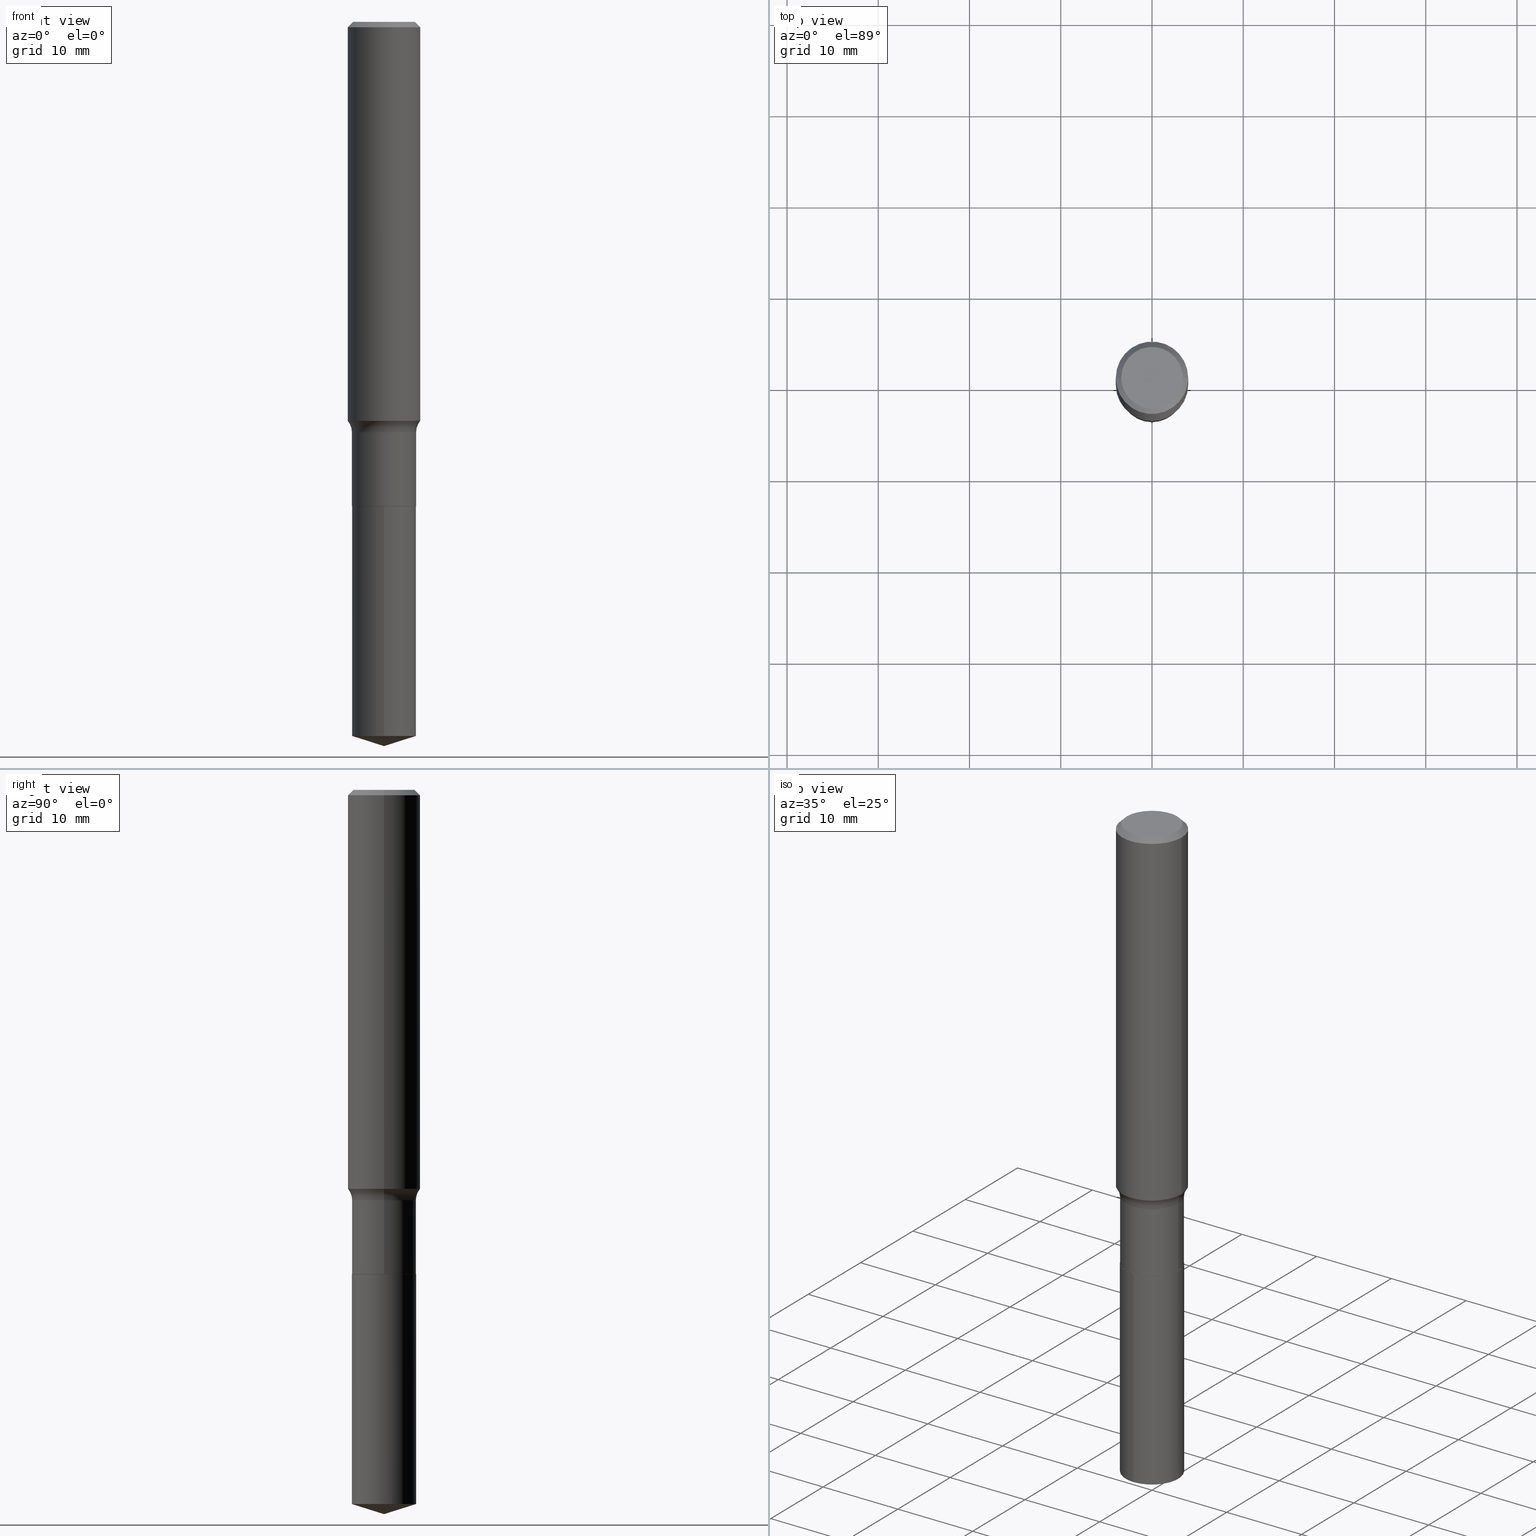
[diagram: canonical four-view strip — front | top / right | iso, engineering-drawing reading convention]
A machine part, canonical four-view strip (front | top / right | iso — engineering-drawing reading convention). The complete STEP part file that produces these views, byte-faithful:
ISO-10303-21;
HEADER;
FILE_DESCRIPTION (( 'STEP AP203' ),
    '1' );
FILE_NAME ('51608.STEP',
    '2024-04-19T13:08:50',
    ( '' ),
    ( '' ),
    'SwSTEP 2.0',
    'SolidWorks 2023',
    '' );
FILE_SCHEMA (( 'CONFIG_CONTROL_DESIGN' ));
ENDSEC;

DATA;
#1 = ORIENTED_EDGE ( 'NONE', *, *, #352, .F. ) ;
#2 = CARTESIAN_POINT ( 'NONE',  ( 0.1385000000000000120, -8.260844847702879898E-15, -2.089000000000000412 ) ) ;
#3 = ADVANCED_FACE ( 'NONE', ( #116 ), #122, .F. ) ;
#4 = CIRCLE ( 'NONE', #292, 0.1380000000000000115 ) ;
#5 = ORIENTED_EDGE ( 'NONE', *, *, #362, .T. ) ;
#6 = EDGE_LOOP ( 'NONE', ( #350, #73, #334 ) ) ;
#7 = ORIENTED_EDGE ( 'NONE', *, *, #124, .T. ) ;
#8 = AXIS2_PLACEMENT_3D ( 'NONE', #411, #66, #371 ) ;
#9 = AXIS2_PLACEMENT_3D ( 'NONE', #325, #335, #179 ) ;
#10 = EDGE_CURVE ( 'NONE', #304, #38, #50, .T. ) ;
#11 = CONICAL_SURFACE ( 'NONE', #131, 0.1562500000000000000, 0.7853981633974452814 ) ;
#12 = DIRECTION ( 'NONE',  ( 2.445468806185136597E-29, -3.491481338843145583E-15, -1.000000000000000000 ) ) ;
#13 = CARTESIAN_POINT ( 'NONE',  ( 0.1562500000000000000, -1.153784406030938435E-15, -0.02343750000000014225 ) ) ;
#14 = CARTESIAN_POINT ( 'NONE',  ( 7.641865694742115865E-29, -1.091120042946036964E-14, -3.125000000000000000 ) ) ;
#15 = FACE_OUTER_BOUND ( 'NONE', #485, .T. ) ;
#16 = DIRECTION ( 'NONE',  ( -6.982962677686266711E-15, -1.000000000000000000, 3.491481338843145583E-15 ) ) ;
#17 = AXIS2_PLACEMENT_3D ( 'NONE', #128, #473, #167 ) ;
#18 = APPROVAL ( #466, 'UNSPECIFIED' ) ;
#19 = CARTESIAN_POINT ( 'NONE',  ( 5.108584336120751499E-29, -7.293704516843332211E-15, -2.089000000000000412 ) ) ;
#20 = DIRECTION ( 'NONE',  ( -2.445468806185136877E-29, 3.491481338843145188E-15, 1.000000000000000000 ) ) ;
#21 = CARTESIAN_POINT ( 'NONE',  ( -0.1380000000000000115, -6.312252054989704175E-15, -2.089500000000000135 ) ) ;
#22 = CARTESIAN_POINT ( 'NONE',  ( 9.841016890277897242E-16, 0.1384999999999927123, -2.089500000000000579 ) ) ;
#23 = PERSON_AND_ORGANIZATION ( #177, #190 ) ;
#24 = CC_DESIGN_PERSON_AND_ORGANIZATION_ASSIGNMENT ( #210, #365, ( #114 ) ) ;
#25 = FACE_OUTER_BOUND ( 'NONE', #198, .T. ) ;
#26 = CIRCLE ( 'NONE', #163, 0.1328125000000000000 ) ;
#27 = CC_DESIGN_SECURITY_CLASSIFICATION ( #314, ( #114 ) ) ;
#28 = LINE ( 'NONE', #22, #386 ) ;
#29 = ORIENTED_EDGE ( 'NONE', *, *, #407, .T. ) ;
#30 = CARTESIAN_POINT ( 'NONE',  ( 4.330680708873258393E-29, -6.183064302957326676E-15, -1.770899999999999919 ) ) ;
#31 = FACE_OUTER_BOUND ( 'NONE', #185, .T. ) ;
#32 = VERTEX_POINT ( 'NONE', #345 ) ;
#33 = MANIFOLD_SOLID_BREP ( 'Body-Move/Copy2[1]', #320 ) ;
#34 = FACE_OUTER_BOUND ( 'NONE', #136, .T. ) ;
#35 =( NAMED_UNIT ( * ) PLANE_ANGLE_UNIT ( ) SI_UNIT ( $, .RADIAN. ) );
#36 = AXIS2_PLACEMENT_3D ( 'NONE', #423, #42, #189 ) ;
#37 = CYLINDRICAL_SURFACE ( 'NONE', #284, 0.1385000000000000120 ) ;
#38 = VERTEX_POINT ( 'NONE', #2 ) ;
#39 = APPROVAL_PERSON_ORGANIZATION ( #237, #166, #199 ) ;
#40 = CARTESIAN_POINT ( 'NONE',  ( 0.1380000000000000115, -8.259099107033459183E-15, -2.089500000000000135 ) ) ;
#41 = ORIENTED_EDGE ( 'NONE', *, *, #449, .F. ) ;
#42 = DIRECTION ( 'NONE',  ( -2.445468806185136597E-29, 3.491481338843145583E-15, 1.000000000000000000 ) ) ;
#43 = CLOSED_SHELL ( 'NONE', ( #323, #108, #275, #186, #480, #62, #139, #146, #400, #3, #415, #433 ) ) ;
#44 = ORIENTED_EDGE ( 'NONE', *, *, #391, .F. ) ;
#45 = AXIS2_PLACEMENT_3D ( 'NONE', #256, #61, #376 ) ;
#46 = LOCAL_TIME ( 9, 8, 50.00000000000000000, #403 ) ;
#47 = ORIENTED_EDGE ( 'NONE', *, *, #140, .T. ) ;
#48 = ORIENTED_EDGE ( 'NONE', *, *, #462, .F. ) ;
#49 = CARTESIAN_POINT ( 'NONE',  ( 5.109807070523843179E-29, -7.295450257512754504E-15, -2.089500000000000135 ) ) ;
#50 = CIRCLE ( 'NONE', #36, 0.1385000000000000120 ) ;
#51 = APPROVAL_PERSON_ORGANIZATION ( #161, #18, #248 ) ;
#52 = CYLINDRICAL_SURFACE ( 'NONE', #467, 0.1385000000000000120 ) ;
#53 = APPLICATION_PROTOCOL_DEFINITION ( 'international standard', 'config_control_design', 1994, #81 ) ;
#54 = DIRECTION ( 'NONE',  ( -0.7071067811866199593, 7.493145998870616062E-15, 0.7071067811864750752 ) ) ;
#55 = CC_DESIGN_PERSON_AND_ORGANIZATION_ASSIGNMENT ( #470, #86, ( #451 ) ) ;
#56 = EDGE_CURVE ( 'NONE', #226, #417, #103, .T. ) ;
#57 = DIRECTION ( 'NONE',  ( -2.445468806185136597E-29, 3.491481338843145583E-15, 1.000000000000000000 ) ) ;
#58 = CONICAL_SURFACE ( 'NONE', #157, 0.1380000000000000115, 0.7853981633975507526 ) ;
#59 = DIRECTION ( 'NONE',  ( 1.000000000000000000, -6.982962677686266711E-15, 4.876176775795936353E-29 ) ) ;
#60 = APPROVAL_DATE_TIME ( #221, #115 ) ;
#61 = DIRECTION ( 'NONE',  ( -2.445468806185136597E-29, 3.491481338843145583E-15, 1.000000000000000000 ) ) ;
#62 = ADVANCED_FACE ( 'NONE', ( #273 ), #231, .T. ) ;
#63 = DATE_AND_TIME ( #475, #331 ) ;
#64 = CARTESIAN_POINT ( 'NONE',  ( -0.1384999999999999842, 9.841016890277386454E-16, -6.812725100003043759E-30 ) ) ;
#65 = ORIENTED_EDGE ( 'NONE', *, *, #176, .F. ) ;
#66 = DIRECTION ( 'NONE',  ( -2.445468806185136597E-29, 3.491481338843145583E-15, 1.000000000000000000 ) ) ;
#67 = CIRCLE ( 'NONE', #45, 0.1384999999999999842 ) ;
#68 = DIRECTION ( 'NONE',  ( 6.982962677686265922E-15, 1.000000000000000000, -3.491584137427317387E-15 ) ) ;
#69 = DIMENSIONAL_EXPONENTS ( 1.000000000000000000, 0.000000000000000000, 0.000000000000000000, 0.000000000000000000, 0.000000000000000000, 0.000000000000000000, 0.000000000000000000 ) ;
#70 = LINE ( 'NONE', #129, #126 ) ;
#71 = VERTEX_POINT ( 'NONE', #165 ) ;
#72 = CARTESIAN_POINT ( 'NONE',  ( 9.841016890278141788E-16, 0.1384999999999927123, -2.089500000000000579 ) ) ;
#73 = ORIENTED_EDGE ( 'NONE', *, *, #327, .T. ) ;
#74 = VECTOR ( 'NONE', #54, 39.37007874015748143 ) ;
#75 = AXIS2_PLACEMENT_3D ( 'NONE', #413, #488, #439 ) ;
#76 = ORIENTED_EDGE ( 'NONE', *, *, #78, .F. ) ;
#77 = ORIENTED_EDGE ( 'NONE', *, *, #456, .F. ) ;
#78 = EDGE_CURVE ( 'NONE', #236, #306, #200, .T. ) ;
#79 = EDGE_LOOP ( 'NONE', ( #47, #120 ) ) ;
#80 = ORIENTED_EDGE ( 'NONE', *, *, #78, .T. ) ;
#81 = APPLICATION_CONTEXT ( 'configuration controlled 3d designs of mechanical parts and assemblies' ) ;
#82 = LOCAL_TIME ( 9, 8, 50.00000000000000000, #192 ) ;
#83 = ORIENTED_EDGE ( 'NONE', *, *, #491, .F. ) ;
#84 = DATE_TIME_ROLE ( 'classification_date' ) ;
#85 = EDGE_LOOP ( 'NONE', ( #315, #414, #421, #337 ) ) ;
#86 = PERSON_AND_ORGANIZATION_ROLE ( 'design_owner' ) ;
#87 = LINE ( 'NONE', #14, #437 ) ;
#88 = CIRCLE ( 'NONE', #215, 0.1562500000000002220 ) ;
#89 = CONICAL_SURFACE ( 'NONE', #75, 0.1380000000000000115, 0.7853981633975507526 ) ;
#90 = DATE_AND_TIME ( #127, #46 ) ;
#91 = LINE ( 'NONE', #434, #405 ) ;
#92 = FACE_OUTER_BOUND ( 'NONE', #174, .T. ) ;
#93 = ADVANCED_FACE ( 'NONE', ( #255 ), #141, .T. ) ;
#94 = DIRECTION ( 'NONE',  ( 6.776566513254258926E-15, 0.9537169507482290420, 0.3007057995042663467 ) ) ;
#95 = PERSON_AND_ORGANIZATION_ROLE ( 'design_supplier' ) ;
#96 = DIRECTION ( 'NONE',  ( -2.445468806185136597E-29, 3.491481338843145583E-15, 1.000000000000000000 ) ) ;
#97 = ORIENTED_EDGE ( 'NONE', *, *, #391, .T. ) ;
#98 = PERSON_AND_ORGANIZATION_ROLE ( 'creator' ) ;
#99 = CARTESIAN_POINT ( 'NONE',  ( 4.330680708873258393E-29, -6.183064302957326676E-15, -1.770899999999999919 ) ) ;
#100 = CARTESIAN_POINT ( 'NONE',  ( 5.109807070523843179E-29, -7.295450257512754504E-15, -2.089500000000000135 ) ) ;
#101 = EDGE_LOOP ( 'NONE', ( #111, #296, #65, #44 ) ) ;
#102 = APPROVAL_ROLE ( '' ) ;
#103 = CIRCLE ( 'NONE', #346, 0.1562500000000002220 ) ;
#104 = VECTOR ( 'NONE', #339, 39.37007874015748143 ) ;
#105 = CARTESIAN_POINT ( 'NONE',  ( 4.209538949674238313E-29, -6.010105976714014974E-15, -1.721362766528599542 ) ) ;
#106 = ORIENTED_EDGE ( 'NONE', *, *, #327, .F. ) ;
#107 = PERSON_AND_ORGANIZATION ( #177, #190 ) ;
#108 = ADVANCED_FACE ( 'NONE', ( #25 ), #130, .T. ) ;
#109 = CARTESIAN_POINT ( 'NONE',  ( 0.000000000000000000, 0.000000000000000000, 0.000000000000000000 ) ) ;
#110 = FACE_OUTER_BOUND ( 'NONE', #442, .T. ) ;
#111 = ORIENTED_EDGE ( 'NONE', *, *, #294, .T. ) ;
#112 = CYLINDRICAL_SURFACE ( 'NONE', #478, 0.1384999999999999842 ) ;
#113 = CIRCLE ( 'NONE', #446, 0.1385000000000000120 ) ;
#114 = PRODUCT_DEFINITION_FORMATION_WITH_SPECIFIED_SOURCE ( 'ANY', '', #451, .NOT_KNOWN. ) ;
#115 = APPROVAL ( #223, 'UNSPECIFIED' ) ;
#116 = FACE_OUTER_BOUND ( 'NONE', #79, .T. ) ;
#117 = DIRECTION ( 'NONE',  ( 1.000000000000000000, -6.982962677686265922E-15, 0.000000000000000000 ) ) ;
#118 =( CONVERSION_BASED_UNIT ( 'INCH', #264 ) LENGTH_UNIT ( ) NAMED_UNIT ( #69 ) );
#119 = ORIENTED_EDGE ( 'NONE', *, *, #472, .T. ) ;
#120 = ORIENTED_EDGE ( 'NONE', *, *, #352, .T. ) ;
#121 = EDGE_CURVE ( 'NONE', #379, #382, #137, .T. ) ;
#122 = PLANE ( 'NONE',  #353 ) ;
#123 = DIRECTION ( 'NONE',  ( 0.7071067811865453523, -7.319954787623248157E-15, -0.7071067811865496822 ) ) ;
#124 = EDGE_CURVE ( 'NONE', #417, #382, #91, .T. ) ;
#125 = CARTESIAN_POINT ( 'NONE',  ( 5.109807070523843179E-29, -7.295450257512754504E-15, -2.089500000000000135 ) ) ;
#126 = VECTOR ( 'NONE', #184, 39.37007874015748143 ) ;
#127 = CALENDAR_DATE ( 2024, 19, 4 ) ;
#128 = CARTESIAN_POINT ( 'NONE',  ( 5.109807070523843179E-29, -7.295450257512754504E-15, -2.089500000000000135 ) ) ;
#129 = CARTESIAN_POINT ( 'NONE',  ( 0.1384999999999999842, -9.671403308595478842E-16, 6.753504834477370120E-30 ) ) ;
#130 = CONICAL_SURFACE ( 'NONE', #425, 0.1562500000000000000, 0.7853981633974452814 ) ;
#131 = AXIS2_PLACEMENT_3D ( 'NONE', #409, #138, #444 ) ;
#132 = PLANE ( 'NONE',  #354 ) ;
#133 = ORIENTED_EDGE ( 'NONE', *, *, #232, .T. ) ;
#134 = APPROVAL_DATE_TIME ( #349, #166 ) ;
#135 = CARTESIAN_POINT ( 'NONE',  ( -9.671403308594968054E-16, -0.1385000000000072840, -2.089499999999999691 ) ) ;
#136 = EDGE_LOOP ( 'NONE', ( #133, #457 ) ) ;
#137 = LINE ( 'NONE', #395, #359 ) ;
#138 = DIRECTION ( 'NONE',  ( 2.445468806185136597E-29, -3.491481338843145583E-15, -1.000000000000000000 ) ) ;
#139 = ADVANCED_FACE ( 'NONE', ( #92 ), #436, .F. ) ;
#140 = EDGE_CURVE ( 'NONE', #379, #32, #26, .T. ) ;
#141 = CONICAL_SURFACE ( 'NONE', #477, 124.8659371009154597, 1.265363707695892570 ) ;
#142 = ADVANCED_BREP_SHAPE_REPRESENTATION ( '51608', ( #33, #193, #468 ), #269 ) ;
#143 = AXIS2_PLACEMENT_3D ( 'NONE', #333, #479, #343 ) ;
#144 = LINE ( 'NONE', #173, #171 ) ;
#145 = DIRECTION ( 'NONE',  ( -2.445468806185136597E-29, 3.491481338843145583E-15, 1.000000000000000000 ) ) ;
#146 = ADVANCED_FACE ( 'NONE', ( #252 ), #217, .T. ) ;
#147 =( NAMED_UNIT ( * ) SI_UNIT ( $, .STERADIAN. ) SOLID_ANGLE_UNIT ( ) );
#148 = DIRECTION ( 'NONE',  ( 0.7071067811866199593, -2.468850131083015945E-15, 0.7071067811864750752 ) ) ;
#149 = ORIENTED_EDGE ( 'NONE', *, *, #445, .T. ) ;
#150 = CARTESIAN_POINT ( 'NONE',  ( 4.209538949674238313E-29, -6.010105976714014974E-15, -1.721362766528599542 ) ) ;
#151 = ORIENTED_EDGE ( 'NONE', *, *, #491, .T. ) ;
#152 = ORIENTED_EDGE ( 'NONE', *, *, #195, .T. ) ;
#153 = CALENDAR_DATE ( 2024, 19, 4 ) ;
#154 = CC_DESIGN_DATE_AND_TIME_ASSIGNMENT ( #279, #84, ( #314 ) ) ;
#155 = DIRECTION ( 'NONE',  ( 0.000000000000000000, 0.000000000000000000, 1.000000000000000000 ) ) ;
#156 = ORIENTED_EDGE ( 'NONE', *, *, #472, .F. ) ;
#157 = AXIS2_PLACEMENT_3D ( 'NONE', #49, #57, #357 ) ;
#158 = DIRECTION ( 'NONE',  ( -6.982962677686265922E-15, -1.000000000000000000, 3.944906850056697224E-15 ) ) ;
#159 = DIRECTION ( 'NONE',  ( 1.000000000000000000, -6.982962677686266711E-15, 4.883557194083112901E-29 ) ) ;
#160 = CARTESIAN_POINT ( 'NONE',  ( -8.863345763245211875E-28, 1.265529567865795941E-13, 36.24507874015748143 ) ) ;
#161 = PERSON_AND_ORGANIZATION ( #177, #190 ) ;
#162 = DIRECTION ( 'NONE',  ( 1.000000000000000000, -6.982962677686265922E-15, 0.000000000000000000 ) ) ;
#163 = AXIS2_PLACEMENT_3D ( 'NONE', #172, #476, #258 ) ;
#164 = FACE_OUTER_BOUND ( 'NONE', #461, .T. ) ;
#165 = CARTESIAN_POINT ( 'NONE',  ( 0.1384999999999999842, -7.150204633816874363E-15, -1.770899999999999919 ) ) ;
#166 = APPROVAL ( #393, 'UNSPECIFIED' ) ;
#167 = DIRECTION ( 'NONE',  ( 1.000000000000000000, -6.982962677686269866E-15, 0.000000000000000000 ) ) ;
#168 = PLANE ( 'NONE',  #398 ) ;
#169 = ORIENTED_EDGE ( 'NONE', *, *, #280, .T. ) ;
#170 = DESIGN_CONTEXT ( 'detailed design', #81, 'design' ) ;
#171 = VECTOR ( 'NONE', #219, 39.37007874015748143 ) ;
#172 = CARTESIAN_POINT ( 'NONE',  ( -7.955031918821654702E-47, 1.135767727816384474E-32, 3.252968060235159383E-18 ) ) ;
#173 = CARTESIAN_POINT ( 'NONE',  ( 0.1562500000000001110, -1.091087918388479962E-15, 7.619026212181155982E-30 ) ) ;
#174 = EDGE_LOOP ( 'NONE', ( #156, #368, #344, #276 ) ) ;
#175 = DIRECTION ( 'NONE',  ( -2.445468806185136597E-29, 3.491481338843145583E-15, 1.000000000000000000 ) ) ;
#176 = EDGE_CURVE ( 'NONE', #71, #187, #208, .T. ) ;
#177 = PERSON ( 'UNSPECIFIED', 'UNSPECIFIED', 'UNSPECIFIED', ('UNSPECIFIED'), ('UNSPECIFIED'), ('UNSPECIFIED') ) ;
#178 = DIRECTION ( 'NONE',  ( -2.438088387897960049E-29, 3.491481338843145188E-15, 1.000000000000000000 ) ) ;
#179 = DIRECTION ( 'NONE',  ( -1.000000000000000000, 7.105427357600997914E-15, 0.000000000000000000 ) ) ;
#180 = DIRECTION ( 'NONE',  ( 1.000000000000000000, -6.982962677686269866E-15, 0.000000000000000000 ) ) ;
#181 = ORIENTED_EDGE ( 'NONE', *, *, #426, .T. ) ;
#182 = CARTESIAN_POINT ( 'NONE',  ( 4.330680708873258393E-29, -6.183064302957326676E-15, -1.770899999999999919 ) ) ;
#183 = CONICAL_SURFACE ( 'NONE', #377, 124.8659371009154597, 1.265363707695892570 ) ;
#184 = DIRECTION ( 'NONE',  ( -2.445468806185136877E-29, 3.491481338843145188E-15, 1.000000000000000000 ) ) ;
#185 = EDGE_LOOP ( 'NONE', ( #76, #263 ) ) ;
#186 = ADVANCED_FACE ( 'NONE', ( #15 ), #321, .F. ) ;
#187 = VERTEX_POINT ( 'NONE', #338 ) ;
#188 =( LENGTH_UNIT ( ) NAMED_UNIT ( * ) SI_UNIT ( $, .METRE. ) );
#189 = DIRECTION ( 'NONE',  ( 1.000000000000000000, -6.982962677686265922E-15, 0.000000000000000000 ) ) ;
#190 = ORGANIZATION ( 'UNSPECIFIED', 'UNSPECIFIED', '' ) ;
#191 = ORIENTED_EDGE ( 'NONE', *, *, #324, .T. ) ;
#192 = COORDINATED_UNIVERSAL_TIME_OFFSET ( 5, 0, .BEHIND. ) ;
#193 = MANIFOLD_SOLID_BREP ( 'Body-Move/Copy2[2]', #43 ) ;
#194 = CALENDAR_DATE ( 2024, 19, 4 ) ;
#195 = EDGE_CURVE ( 'NONE', #392, #278, #290, .T. ) ;
#196 = ORIENTED_EDGE ( 'NONE', *, *, #140, .F. ) ;
#197 = PERSON_AND_ORGANIZATION_ROLE ( 'classification_officer' ) ;
#198 = EDGE_LOOP ( 'NONE', ( #1, #191, #220, #489 ) ) ;
#199 = APPROVAL_ROLE ( '' ) ;
#200 = CIRCLE ( 'NONE', #17, 0.1380000000000000115 ) ;
#201 = VECTOR ( 'NONE', #372, 39.37007874015748143 ) ;
#202 = LINE ( 'NONE', #13, #366 ) ;
#203 = CC_DESIGN_PERSON_AND_ORGANIZATION_ASSIGNMENT ( #107, #98, ( #250 ) ) ;
#204 = CARTESIAN_POINT ( 'NONE',  ( 5.109807070523843179E-29, -7.295450257512754504E-15, -2.089500000000000135 ) ) ;
#205 = DIRECTION ( 'NONE',  ( 1.000000000000000000, -6.982962677686267499E-15, 0.000000000000000000 ) ) ;
#206 = CARTESIAN_POINT ( 'NONE',  ( -0.1385000000000000120, -5.754282720872590206E-15, -2.089000000000000412 ) ) ;
#207 = DIRECTION ( 'NONE',  ( -6.982962677686265922E-15, -1.000000000000000000, 3.944906850056697224E-15 ) ) ;
#208 = CIRCLE ( 'NONE', #385, 0.1384999999999999842 ) ;
#209 = DIRECTION ( 'NONE',  ( -2.445397022317477189E-29, 3.491584137427317781E-15, 1.000000000000000000 ) ) ;
#210 = PERSON_AND_ORGANIZATION ( #177, #190 ) ;
#211 = CARTESIAN_POINT ( 'NONE',  ( 5.731567514496448931E-31, -8.183159387913672688E-17, -0.02343750000000014225 ) ) ;
#212 = CARTESIAN_POINT ( 'NONE',  ( -7.955031918821654702E-47, 1.135767727816384474E-32, 3.252968060235159383E-18 ) ) ;
#213 = FACE_OUTER_BOUND ( 'NONE', #85, .T. ) ;
#214 = ORIENTED_EDGE ( 'NONE', *, *, #381, .F. ) ;
#215 = AXIS2_PLACEMENT_3D ( 'NONE', #105, #484, #259 ) ;
#216 = CC_DESIGN_APPROVAL ( #18, ( #250 ) ) ;
#217 = CYLINDRICAL_SURFACE ( 'NONE', #8, 0.1562500000000001110 ) ;
#218 = SHAPE_DEFINITION_REPRESENTATION ( #274, #142 ) ;
#219 = DIRECTION ( 'NONE',  ( -2.445468806185136877E-29, 3.491481338843145188E-15, 1.000000000000000000 ) ) ;
#220 = ORIENTED_EDGE ( 'NONE', *, *, #456, .T. ) ;
#221 = DATE_AND_TIME ( #267, #322 ) ;
#222 = CARTESIAN_POINT ( 'NONE',  ( -0.1562500000000000000, -1.935745760671417584E-15, -0.02343750000000014225 ) ) ;
#223 = APPROVAL_STATUS ( 'not_yet_approved' ) ;
#224 = CARTESIAN_POINT ( 'NONE',  ( 7.535227932487693934E-29, -1.075851205522145711E-14, -3.081331117740261583 ) ) ;
#225 = DIRECTION ( 'NONE',  ( 1.000000000000000000, -6.982962677686266711E-15, 0.000000000000000000 ) ) ;
#226 = VERTEX_POINT ( 'NONE', #242 ) ;
#227 = CIRCLE ( 'NONE', #458, 0.1385000000000000120 ) ;
#228 = AXIS2_PLACEMENT_3D ( 'NONE', #303, #265, #225 ) ;
#229 = EDGE_LOOP ( 'NONE', ( #235, #7, #77, #281 ) ) ;
#230 = DIRECTION ( 'NONE',  ( -1.000000000000000000, 6.982962677686265922E-15, -4.876176775795935793E-29 ) ) ;
#231 = CYLINDRICAL_SURFACE ( 'NONE', #251, 0.1384999999999999842 ) ;
#232 = EDGE_CURVE ( 'NONE', #257, #388, #113, .T. ) ;
#233 = AXIS2_PLACEMENT_3D ( 'NONE', #19, #396, #162 ) ;
#234 = CIRCLE ( 'NONE', #143, 0.1562500000000000000 ) ;
#235 = ORIENTED_EDGE ( 'NONE', *, *, #56, .T. ) ;
#236 = VERTEX_POINT ( 'NONE', #360 ) ;
#237 = PERSON_AND_ORGANIZATION ( #177, #190 ) ;
#238 = DIRECTION ( 'NONE',  ( -6.982962677686265922E-15, -1.000000000000000000, 3.944906850056697224E-15 ) ) ;
#239 = EDGE_LOOP ( 'NONE', ( #151, #428, #482, #374 ) ) ;
#240 = EDGE_CURVE ( 'NONE', #226, #71, #277, .T. ) ;
#241 = CARTESIAN_POINT ( 'NONE',  ( 0.2164999999999999425, -7.694875722676402409E-15, -1.770899999999999919 ) ) ;
#242 = CARTESIAN_POINT ( 'NONE',  ( 0.1562500000000002498, -7.101193895102496514E-15, -1.721362766528599542 ) ) ;
#243 = APPROVAL_DATE_TIME ( #90, #18 ) ;
#244 = CIRCLE ( 'NONE', #261, 0.1328125000000000000 ) ;
#245 = CC_DESIGN_APPROVAL ( #166, ( #314 ) ) ;
#246 = DIRECTION ( 'NONE',  ( -2.445468806185136597E-29, 3.491481338843145583E-15, 1.000000000000000000 ) ) ;
#247 = FACE_OUTER_BOUND ( 'NONE', #229, .T. ) ;
#248 = APPROVAL_ROLE ( '' ) ;
#249 = CARTESIAN_POINT ( 'NONE',  ( 5.109807070523843179E-29, -7.295450257512754504E-15, -2.089500000000000135 ) ) ;
#250 = PRODUCT_DEFINITION ( 'UNKNOWN', '', #114, #170 ) ;
#251 = AXIS2_PLACEMENT_3D ( 'NONE', #384, #175, #355 ) ;
#252 = FACE_OUTER_BOUND ( 'NONE', #340, .T. ) ;
#253 = LINE ( 'NONE', #64, #201 ) ;
#254 = SECURITY_CLASSIFICATION_LEVEL ( 'unclassified' ) ;
#255 = FACE_OUTER_BOUND ( 'NONE', #6, .T. ) ;
#256 = CARTESIAN_POINT ( 'NONE',  ( 4.330680708873258393E-29, -6.183064302957326676E-15, -1.770899999999999919 ) ) ;
#257 = VERTEX_POINT ( 'NONE', #474 ) ;
#258 = DIRECTION ( 'NONE',  ( 1.000000000000000000, -6.982962677686268288E-15, 4.876286914311434227E-29 ) ) ;
#259 = DIRECTION ( 'NONE',  ( 1.000000000000000000, -6.982962677686265922E-15, 0.000000000000000000 ) ) ;
#260 = ORIENTED_EDGE ( 'NONE', *, *, #10, .T. ) ;
#261 = AXIS2_PLACEMENT_3D ( 'NONE', #212, #96, #336 ) ;
#262 = DIRECTION ( 'NONE',  ( 1.000000000000000000, -6.982962677686265922E-15, 4.876176775795935793E-29 ) ) ;
#263 = ORIENTED_EDGE ( 'NONE', *, *, #420, .F. ) ;
#264 = LENGTH_MEASURE_WITH_UNIT ( LENGTH_MEASURE( 0.02539999999999999897 ), #188 );
#265 = DIRECTION ( 'NONE',  ( -2.445468806185136597E-29, 3.491481338843145583E-15, 1.000000000000000000 ) ) ;
#266 = ORIENTED_EDGE ( 'NONE', *, *, #381, .T. ) ;
#267 = CALENDAR_DATE ( 2024, 19, 4 ) ;
#268 = CC_DESIGN_PERSON_AND_ORGANIZATION_ASSIGNMENT ( #332, #197, ( #314 ) ) ;
#269 =( GEOMETRIC_REPRESENTATION_CONTEXT ( 3 ) GLOBAL_UNCERTAINTY_ASSIGNED_CONTEXT ( ( #389 ) ) GLOBAL_UNIT_ASSIGNED_CONTEXT ( ( #118, #35, #147 ) ) REPRESENTATION_CONTEXT ( 'NONE', 'WORKASPACE' ) );
#270 = DIRECTION ( 'NONE',  ( -6.982962677686265922E-15, -1.000000000000000000, 3.944906850056697224E-15 ) ) ;
#271 = CARTESIAN_POINT ( 'NONE',  ( -3.977515959410827351E-47, 5.678838639081922371E-33, 1.626484030117579692E-18 ) ) ;
#272 = DIRECTION ( 'NONE',  ( -2.445468806185136597E-29, 3.491481338843145583E-15, 1.000000000000000000 ) ) ;
#273 = FACE_OUTER_BOUND ( 'NONE', #300, .T. ) ;
#274 = PRODUCT_DEFINITION_SHAPE ( 'NONE', 'NONE',  #250 ) ;
#275 = ADVANCED_FACE ( 'NONE', ( #247 ), #356, .T. ) ;
#276 = ORIENTED_EDGE ( 'NONE', *, *, #176, .T. ) ;
#277 = CIRCLE ( 'NONE', #342, 0.07799999999999999989 ) ;
#278 = VERTEX_POINT ( 'NONE', #402 ) ;
#279 = DATE_AND_TIME ( #153, #82 ) ;
#280 = EDGE_CURVE ( 'NONE', #306, #304, #465, .T. ) ;
#281 = ORIENTED_EDGE ( 'NONE', *, *, #445, .F. ) ;
#282 = CARTESIAN_POINT ( 'NONE',  ( 7.641865694742115865E-29, -1.091120042946036807E-14, -3.125000000000000000 ) ) ;
#283 = DIRECTION ( 'NONE',  ( -2.445397022317477189E-29, 3.491584137427317781E-15, 1.000000000000000000 ) ) ;
#284 = AXIS2_PLACEMENT_3D ( 'NONE', #408, #364, #367 ) ;
#285 = APPROVAL_PERSON_ORGANIZATION ( #486, #115, #102 ) ;
#286 = DIRECTION ( 'NONE',  ( -6.982962677686265922E-15, -1.000000000000000000, 3.944906850056697224E-15 ) ) ;
#287 = CARTESIAN_POINT ( 'NONE',  ( 7.535227932487693934E-29, -1.075851205522145711E-14, -3.081331117740261583 ) ) ;
#288 = CC_DESIGN_DATE_AND_TIME_ASSIGNMENT ( #63, #443, ( #250 ) ) ;
#289 = DIRECTION ( 'NONE',  ( -1.000000000000000000, 6.982962677686266711E-15, 0.000000000000000000 ) ) ;
#290 = CIRCLE ( 'NONE', #412, 0.1385000000000000120 ) ;
#291 = DIRECTION ( 'NONE',  ( -2.445468806185136597E-29, 3.491481338843145583E-15, 1.000000000000000000 ) ) ;
#292 = AXIS2_PLACEMENT_3D ( 'NONE', #416, #291, #180 ) ;
#293 = CIRCLE ( 'NONE', #9, 0.07799999999999999989 ) ;
#294 = EDGE_CURVE ( 'NONE', #38, #304, #397, .T. ) ;
#295 = DIRECTION ( 'NONE',  ( 2.445397022317477189E-29, -3.491584137427317387E-15, -1.000000000000000000 ) ) ;
#296 = ORIENTED_EDGE ( 'NONE', *, *, #449, .T. ) ;
#297 = CARTESIAN_POINT ( 'NONE',  ( 9.841016890278143761E-16, 0.1384999999999892706, -3.081331117740262027 ) ) ;
#298 = ORIENTED_EDGE ( 'NONE', *, *, #435, .T. ) ;
#299 = LINE ( 'NONE', #135, #104 ) ;
#300 = EDGE_LOOP ( 'NONE', ( #41, #260, #97, #214 ) ) ;
#301 = AXIS2_PLACEMENT_3D ( 'NONE', #99, #363, #328 ) ;
#302 = CC_DESIGN_APPROVAL ( #115, ( #114 ) ) ;
#303 = CARTESIAN_POINT ( 'NONE',  ( 5.731567514496448931E-31, -8.183159387913672688E-17, -0.02343750000000014225 ) ) ;
#304 = VERTEX_POINT ( 'NONE', #206 ) ;
#305 = ADVANCED_FACE ( 'NONE', ( #164 ), #52, .T. ) ;
#306 = VERTEX_POINT ( 'NONE', #21 ) ;
#307 = VERTEX_POINT ( 'NONE', #282 ) ;
#308 = DIRECTION ( 'NONE',  ( -2.445468806185136597E-29, 3.491481338843145583E-15, 1.000000000000000000 ) ) ;
#309 = ORIENTED_EDGE ( 'NONE', *, *, #362, .F. ) ;
#310 = CARTESIAN_POINT ( 'NONE',  ( 0.000000000000000000, 0.000000000000000000, 0.000000000000000000 ) ) ;
#311 = ORIENTED_EDGE ( 'NONE', *, *, #121, .T. ) ;
#312 = DIRECTION ( 'NONE',  ( 1.000000000000000000, 0.000000000000000000, 0.000000000000000000 ) ) ;
#313 = AXIS2_PLACEMENT_3D ( 'NONE', #399, #469, #59 ) ;
#314 = SECURITY_CLASSIFICATION ( '', '', #254 ) ;
#315 = ORIENTED_EDGE ( 'NONE', *, *, #280, .F. ) ;
#316 = APPLICATION_CONTEXT ( 'configuration controlled 3d designs of mechanical parts and assemblies' ) ;
#317 = ADVANCED_FACE ( 'NONE', ( #429 ), #183, .T. ) ;
#318 = COORDINATED_UNIVERSAL_TIME_OFFSET ( 5, 0, .BEHIND. ) ;
#319 = DIRECTION ( 'NONE',  ( -6.659769872151633666E-15, -0.9537169507482269326, 0.3007057995042729526 ) ) ;
#320 = CLOSED_SHELL ( 'NONE', ( #380, #317, #93, #305, #401 ) ) ;
#321 = TOROIDAL_SURFACE ( 'NONE', #487, 0.2164999999999999425, 0.07799999999999999989 ) ;
#322 = LOCAL_TIME ( 9, 8, 50.00000000000000000, #375 ) ;
#323 = ADVANCED_FACE ( 'NONE', ( #404 ), #58, .T. ) ;
#324 = EDGE_CURVE ( 'NONE', #32, #348, #202, .T. ) ;
#325 = CARTESIAN_POINT ( 'NONE',  ( -0.2164999999999999425, -4.644739280036710379E-15, -1.770899999999999919 ) ) ;
#326 = DIRECTION ( 'NONE',  ( -2.445397022317477189E-29, 3.491584137427317781E-15, 1.000000000000000000 ) ) ;
#327 = EDGE_CURVE ( 'NONE', #307, #278, #87, .T. ) ;
#328 = DIRECTION ( 'NONE',  ( 1.000000000000000000, -6.982962677686266711E-15, 4.883557194083112901E-29 ) ) ;
#329 = CARTESIAN_POINT ( 'NONE',  ( 5.109807070523843179E-29, -7.295450257512754504E-15, -2.089500000000000135 ) ) ;
#330 = ORIENTED_EDGE ( 'NONE', *, *, #294, .F. ) ;
#331 = LOCAL_TIME ( 9, 8, 50.00000000000000000, #483 ) ;
#332 = PERSON_AND_ORGANIZATION ( #177, #190 ) ;
#333 = CARTESIAN_POINT ( 'NONE',  ( 5.731567514496448931E-31, -8.183159387913672688E-17, -0.02343750000000014225 ) ) ;
#334 = ORIENTED_EDGE ( 'NONE', *, *, #195, .F. ) ;
#335 = DIRECTION ( 'NONE',  ( 7.105427357601001859E-15, 1.000000000000000000, -3.491481338843145583E-15 ) ) ;
#336 = DIRECTION ( 'NONE',  ( 1.000000000000000000, -6.982962677686268288E-15, 4.876286914311434227E-29 ) ) ;
#337 = ORIENTED_EDGE ( 'NONE', *, *, #10, .F. ) ;
#338 = CARTESIAN_POINT ( 'NONE',  ( -0.1384999999999999842, -5.754282720872590206E-15, -1.770899999999999919 ) ) ;
#339 = DIRECTION ( 'NONE',  ( -2.445397022317477189E-29, 3.491584137427317387E-15, 1.000000000000000000 ) ) ;
#340 = EDGE_LOOP ( 'NONE', ( #450, #5, #149, #454 ) ) ;
#341 = EDGE_CURVE ( 'NONE', #388, #257, #227, .T. ) ;
#342 = AXIS2_PLACEMENT_3D ( 'NONE', #241, #16, #464 ) ;
#343 = DIRECTION ( 'NONE',  ( 1.000000000000000000, -6.982962677686266711E-15, 0.000000000000000000 ) ) ;
#344 = ORIENTED_EDGE ( 'NONE', *, *, #240, .T. ) ;
#345 = CARTESIAN_POINT ( 'NONE',  ( 0.1328125000000000000, -1.032472148179985084E-15, 3.252968060242011842E-18 ) ) ;
#346 = AXIS2_PLACEMENT_3D ( 'NONE', #150, #308, #117 ) ;
#347 = VECTOR ( 'NONE', #148, 39.37007874015748143 ) ;
#348 = VERTEX_POINT ( 'NONE', #432 ) ;
#349 = DATE_AND_TIME ( #194, #452 ) ;
#350 = ORIENTED_EDGE ( 'NONE', *, *, #435, .F. ) ;
#351 = ORIENTED_EDGE ( 'NONE', *, *, #394, .F. ) ;
#352 = EDGE_CURVE ( 'NONE', #32, #379, #244, .T. ) ;
#353 = AXIS2_PLACEMENT_3D ( 'NONE', #271, #422, #230 ) ;
#354 = AXIS2_PLACEMENT_3D ( 'NONE', #100, #178, #262 ) ;
#355 = DIRECTION ( 'NONE',  ( 1.000000000000000000, -6.982962677686267499E-15, 4.876176775795935793E-29 ) ) ;
#356 = CYLINDRICAL_SURFACE ( 'NONE', #313, 0.1562500000000001110 ) ;
#357 = DIRECTION ( 'NONE',  ( 1.000000000000000000, -6.982962677686269866E-15, 0.000000000000000000 ) ) ;
#358 = DIRECTION ( 'NONE',  ( -2.445397022317477189E-29, 3.491584137427317781E-15, 1.000000000000000000 ) ) ;
#359 = VECTOR ( 'NONE', #361, 39.37007874015748143 ) ;
#360 = CARTESIAN_POINT ( 'NONE',  ( 0.1380000000000000115, -8.259099107033459183E-15, -2.089500000000000135 ) ) ;
#361 = DIRECTION ( 'NONE',  ( -0.7071067811865453523, 2.468850131082234184E-15, -0.7071067811865496822 ) ) ;
#362 = EDGE_CURVE ( 'NONE', #417, #226, #88, .T. ) ;
#363 = DIRECTION ( 'NONE',  ( -2.445468806185136597E-29, 3.491481338843145583E-15, 1.000000000000000000 ) ) ;
#364 = DIRECTION ( 'NONE',  ( -2.445397022317477189E-29, 3.491584137427317781E-15, 1.000000000000000000 ) ) ;
#365 = PERSON_AND_ORGANIZATION_ROLE ( 'creator' ) ;
#366 = VECTOR ( 'NONE', #123, 39.37007874015748143 ) ;
#367 = DIRECTION ( 'NONE',  ( -6.982962677686265922E-15, -1.000000000000000000, 3.944906850056697224E-15 ) ) ;
#368 = ORIENTED_EDGE ( 'NONE', *, *, #56, .F. ) ;
#369 = CIRCLE ( 'NONE', #460, 0.1385000000000000120 ) ;
#370 = DIRECTION ( 'NONE',  ( -2.445397022317477189E-29, 3.491584137427317781E-15, 1.000000000000000000 ) ) ;
#371 = DIRECTION ( 'NONE',  ( 1.000000000000000000, -6.982962677686266711E-15, 4.876176775795936353E-29 ) ) ;
#372 = DIRECTION ( 'NONE',  ( -2.445468806185136877E-29, 3.491481338843145188E-15, 1.000000000000000000 ) ) ;
#373 = DIRECTION ( 'NONE',  ( -2.445397022317477189E-29, 3.491584137427317387E-15, 1.000000000000000000 ) ) ;
#374 = ORIENTED_EDGE ( 'NONE', *, *, #426, .F. ) ;
#375 = COORDINATED_UNIVERSAL_TIME_OFFSET ( 5, 0, .BEHIND. ) ;
#376 = DIRECTION ( 'NONE',  ( 1.000000000000000000, -6.982962677686267499E-15, 0.000000000000000000 ) ) ;
#377 = AXIS2_PLACEMENT_3D ( 'NONE', #160, #326, #431 ) ;
#378 = VECTOR ( 'NONE', #94, 39.37007874015748143 ) ;
#379 = VERTEX_POINT ( 'NONE', #447 ) ;
#380 = ADVANCED_FACE ( 'NONE', ( #448 ), #37, .T. ) ;
#381 = EDGE_CURVE ( 'NONE', #187, #71, #67, .T. ) ;
#382 = VERTEX_POINT ( 'NONE', #222 ) ;
#383 = DIRECTION ( 'NONE',  ( 1.000000000000000000, -6.982962677686267499E-15, 4.876176775795935793E-29 ) ) ;
#384 = CARTESIAN_POINT ( 'NONE',  ( 0.000000000000000000, 0.000000000000000000, 0.000000000000000000 ) ) ;
#385 = AXIS2_PLACEMENT_3D ( 'NONE', #30, #246, #205 ) ;
#386 = VECTOR ( 'NONE', #373, 39.37007874015748143 ) ;
#387 = LINE ( 'NONE', #40, #347 ) ;
#388 = VERTEX_POINT ( 'NONE', #72 ) ;
#389 = UNCERTAINTY_MEASURE_WITH_UNIT (LENGTH_MEASURE( 1.000000000000000082E-05 ), #118, 'distance_accuracy_value', 'NONE');
#390 = APPLICATION_PROTOCOL_DEFINITION ( 'international standard', 'config_control_design', 1994, #316 ) ;
#391 = EDGE_CURVE ( 'NONE', #38, #71, #70, .T. ) ;
#392 = VERTEX_POINT ( 'NONE', #297 ) ;
#393 = APPROVAL_STATUS ( 'not_yet_approved' ) ;
#394 = EDGE_CURVE ( 'NONE', #392, #388, #28, .T. ) ;
#395 = CARTESIAN_POINT ( 'NONE',  ( -0.1562500000000000000, 1.009256324509342545E-15, -0.02343750000000014225 ) ) ;
#396 = DIRECTION ( 'NONE',  ( -2.445468806185136597E-29, 3.491481338843145583E-15, 1.000000000000000000 ) ) ;
#397 = CIRCLE ( 'NONE', #233, 0.1385000000000000120 ) ;
#398 = AXIS2_PLACEMENT_3D ( 'NONE', #329, #295, #68 ) ;
#399 = CARTESIAN_POINT ( 'NONE',  ( 0.000000000000000000, 0.000000000000000000, 0.000000000000000000 ) ) ;
#400 = ADVANCED_FACE ( 'NONE', ( #110 ), #11, .T. ) ;
#401 = ADVANCED_FACE ( 'NONE', ( #34 ), #168, .F. ) ;
#402 = CARTESIAN_POINT ( 'NONE',  ( -9.671403308594727452E-16, -0.1385000000000108089, -3.081331117740260694 ) ) ;
#403 = COORDINATED_UNIVERSAL_TIME_OFFSET ( 5, 0, .BEHIND. ) ;
#404 = FACE_OUTER_BOUND ( 'NONE', #453, .T. ) ;
#405 = VECTOR ( 'NONE', #20, 39.37007874015748143 ) ;
#406 = DIRECTION ( 'NONE',  ( -2.445397022317477189E-29, 3.491584137427317781E-15, 1.000000000000000000 ) ) ;
#407 = EDGE_CURVE ( 'NONE', #382, #348, #234, .T. ) ;
#408 = CARTESIAN_POINT ( 'NONE',  ( 5.109807070523843179E-29, -7.295450257512754504E-15, -2.089500000000000135 ) ) ;
#409 = CARTESIAN_POINT ( 'NONE',  ( 5.731567514496448931E-31, -8.183159387913672688E-17, -0.02343750000000014225 ) ) ;
#410 = ORIENTED_EDGE ( 'NONE', *, *, #324, .F. ) ;
#411 = CARTESIAN_POINT ( 'NONE',  ( 0.000000000000000000, 0.000000000000000000, 0.000000000000000000 ) ) ;
#412 = AXIS2_PLACEMENT_3D ( 'NONE', #287, #370, #238 ) ;
#413 = CARTESIAN_POINT ( 'NONE',  ( 5.109807070523843179E-29, -7.295450257512754504E-15, -2.089500000000000135 ) ) ;
#414 = ORIENTED_EDGE ( 'NONE', *, *, #420, .T. ) ;
#415 = ADVANCED_FACE ( 'NONE', ( #31 ), #132, .F. ) ;
#416 = CARTESIAN_POINT ( 'NONE',  ( 5.109807070523843179E-29, -7.295450257512754504E-15, -2.089500000000000135 ) ) ;
#417 = VERTEX_POINT ( 'NONE', #418 ) ;
#418 = CARTESIAN_POINT ( 'NONE',  ( -0.1562500000000002498, -4.899882952088857645E-15, -1.721362766528599542 ) ) ;
#419 = EDGE_LOOP ( 'NONE', ( #106, #298, #83 ) ) ;
#420 = EDGE_CURVE ( 'NONE', #306, #236, #4, .T. ) ;
#421 = ORIENTED_EDGE ( 'NONE', *, *, #462, .T. ) ;
#422 = DIRECTION ( 'NONE',  ( 2.438088387897960049E-29, -3.491481338843145188E-15, -1.000000000000000000 ) ) ;
#423 = CARTESIAN_POINT ( 'NONE',  ( 5.108584336120751499E-29, -7.293704516843332211E-15, -2.089000000000000412 ) ) ;
#424 = ORIENTED_EDGE ( 'NONE', *, *, #341, .F. ) ;
#425 = AXIS2_PLACEMENT_3D ( 'NONE', #211, #12, #289 ) ;
#426 = EDGE_CURVE ( 'NONE', #278, #257, #299, .T. ) ;
#427 = ORIENTED_EDGE ( 'NONE', *, *, #240, .F. ) ;
#428 = ORIENTED_EDGE ( 'NONE', *, *, #394, .T. ) ;
#429 = FACE_OUTER_BOUND ( 'NONE', #419, .T. ) ;
#430 = PRODUCT_RELATED_PRODUCT_CATEGORY ( 'detail', '', ( #451 ) ) ;
#431 = DIRECTION ( 'NONE',  ( -6.982962677686266711E-15, -1.000000000000000000, 3.500519750498693388E-15 ) ) ;
#432 = CARTESIAN_POINT ( 'NONE',  ( 0.1562500000000000000, -1.172919512267615999E-15, -0.02343750000000014225 ) ) ;
#433 = ADVANCED_FACE ( 'NONE', ( #213 ), #89, .T. ) ;
#434 = CARTESIAN_POINT ( 'NONE',  ( -0.1562500000000001110, 1.110223024625157329E-15, -7.685836078523295364E-30 ) ) ;
#435 = EDGE_CURVE ( 'NONE', #307, #392, #441, .T. ) ;
#436 = TOROIDAL_SURFACE ( 'NONE', #301, 0.2164999999999999425, 0.07799999999999999989 ) ;
#437 = VECTOR ( 'NONE', #319, 39.37007874015748854 ) ;
#438 = CIRCLE ( 'NONE', #228, 0.1562500000000000000 ) ;
#439 = DIRECTION ( 'NONE',  ( 1.000000000000000000, -6.982962677686269866E-15, 0.000000000000000000 ) ) ;
#440 = DIRECTION ( 'NONE',  ( -6.982962677686266711E-15, -1.000000000000000000, 3.500519750498693388E-15 ) ) ;
#441 = LINE ( 'NONE', #481, #378 ) ;
#442 = EDGE_LOOP ( 'NONE', ( #410, #196, #311, #29 ) ) ;
#443 = DATE_TIME_ROLE ( 'creation_date' ) ;
#444 = DIRECTION ( 'NONE',  ( -1.000000000000000000, 6.982962677686266711E-15, 0.000000000000000000 ) ) ;
#445 = EDGE_CURVE ( 'NONE', #226, #348, #144, .T. ) ;
#446 = AXIS2_PLACEMENT_3D ( 'NONE', #204, #406, #207 ) ;
#447 = CARTESIAN_POINT ( 'NONE',  ( -0.1328125000000000000, 9.683405275697749214E-16, 3.252968060228530332E-18 ) ) ;
#448 = FACE_OUTER_BOUND ( 'NONE', #239, .T. ) ;
#449 = EDGE_CURVE ( 'NONE', #304, #187, #253, .T. ) ;
#450 = ORIENTED_EDGE ( 'NONE', *, *, #124, .F. ) ;
#451 = PRODUCT ( '51608', '51608', '', ( #459 ) ) ;
#452 = LOCAL_TIME ( 9, 8, 50.00000000000000000, #318 ) ;
#453 = EDGE_LOOP ( 'NONE', ( #80, #169, #330, #48 ) ) ;
#454 = ORIENTED_EDGE ( 'NONE', *, *, #407, .F. ) ;
#455 = CC_DESIGN_PERSON_AND_ORGANIZATION_ASSIGNMENT ( #23, #95, ( #114 ) ) ;
#456 = EDGE_CURVE ( 'NONE', #348, #382, #438, .T. ) ;
#457 = ORIENTED_EDGE ( 'NONE', *, *, #341, .T. ) ;
#458 = AXIS2_PLACEMENT_3D ( 'NONE', #125, #358, #286 ) ;
#459 = MECHANICAL_CONTEXT ( 'NONE', #316, 'mechanical' ) ;
#460 = AXIS2_PLACEMENT_3D ( 'NONE', #224, #492, #270 ) ;
#461 = EDGE_LOOP ( 'NONE', ( #351, #152, #181, #424 ) ) ;
#462 = EDGE_CURVE ( 'NONE', #236, #38, #387, .T. ) ;
#463 = CARTESIAN_POINT ( 'NONE',  ( -8.863345763245211875E-28, 1.265529567865795941E-13, 36.24507874015748143 ) ) ;
#464 = DIRECTION ( 'NONE',  ( 1.000000000000000000, -6.982962677686270655E-15, 0.000000000000000000 ) ) ;
#465 = LINE ( 'NONE', #471, #74 ) ;
#466 = APPROVAL_STATUS ( 'not_yet_approved' ) ;
#467 = AXIS2_PLACEMENT_3D ( 'NONE', #249, #209, #158 ) ;
#468 = AXIS2_PLACEMENT_3D ( 'NONE', #310, #155, #312 ) ;
#469 = DIRECTION ( 'NONE',  ( -2.445468806185136597E-29, 3.491481338843145583E-15, 1.000000000000000000 ) ) ;
#470 = PERSON_AND_ORGANIZATION ( #177, #190 ) ;
#471 = CARTESIAN_POINT ( 'NONE',  ( -0.1380000000000000115, -6.314901282163815376E-15, -2.089500000000000135 ) ) ;
#472 = EDGE_CURVE ( 'NONE', #417, #187, #293, .T. ) ;
#473 = DIRECTION ( 'NONE',  ( -2.445468806185136597E-29, 3.491481338843145583E-15, 1.000000000000000000 ) ) ;
#474 = CARTESIAN_POINT ( 'NONE',  ( -9.671403308594968054E-16, -0.1385000000000072840, -2.089499999999999691 ) ) ;
#475 = CALENDAR_DATE ( 2024, 19, 4 ) ;
#476 = DIRECTION ( 'NONE',  ( -2.445468806185136597E-29, 3.491481338843145583E-15, 1.000000000000000000 ) ) ;
#477 = AXIS2_PLACEMENT_3D ( 'NONE', #463, #283, #440 ) ;
#478 = AXIS2_PLACEMENT_3D ( 'NONE', #109, #145, #383 ) ;
#479 = DIRECTION ( 'NONE',  ( -2.445468806185136597E-29, 3.491481338843145583E-15, 1.000000000000000000 ) ) ;
#480 = ADVANCED_FACE ( 'NONE', ( #490 ), #112, .T. ) ;
#481 = CARTESIAN_POINT ( 'NONE',  ( 7.642168310037508310E-29, -1.091077083417711261E-14, -3.125000000000000000 ) ) ;
#482 = ORIENTED_EDGE ( 'NONE', *, *, #232, .F. ) ;
#483 = COORDINATED_UNIVERSAL_TIME_OFFSET ( 5, 0, .BEHIND. ) ;
#484 = DIRECTION ( 'NONE',  ( -2.445468806185136597E-29, 3.491481338843145583E-15, 1.000000000000000000 ) ) ;
#485 = EDGE_LOOP ( 'NONE', ( #309, #119, #266, #427 ) ) ;
#486 = PERSON_AND_ORGANIZATION ( #177, #190 ) ;
#487 = AXIS2_PLACEMENT_3D ( 'NONE', #182, #272, #159 ) ;
#488 = DIRECTION ( 'NONE',  ( -2.445468806185136597E-29, 3.491481338843145583E-15, 1.000000000000000000 ) ) ;
#489 = ORIENTED_EDGE ( 'NONE', *, *, #121, .F. ) ;
#490 = FACE_OUTER_BOUND ( 'NONE', #101, .T. ) ;
#491 = EDGE_CURVE ( 'NONE', #278, #392, #369, .T. ) ;
#492 = DIRECTION ( 'NONE',  ( -2.445397022317477189E-29, 3.491584137427317781E-15, 1.000000000000000000 ) ) ;
ENDSEC;
END-ISO-10303-21;
